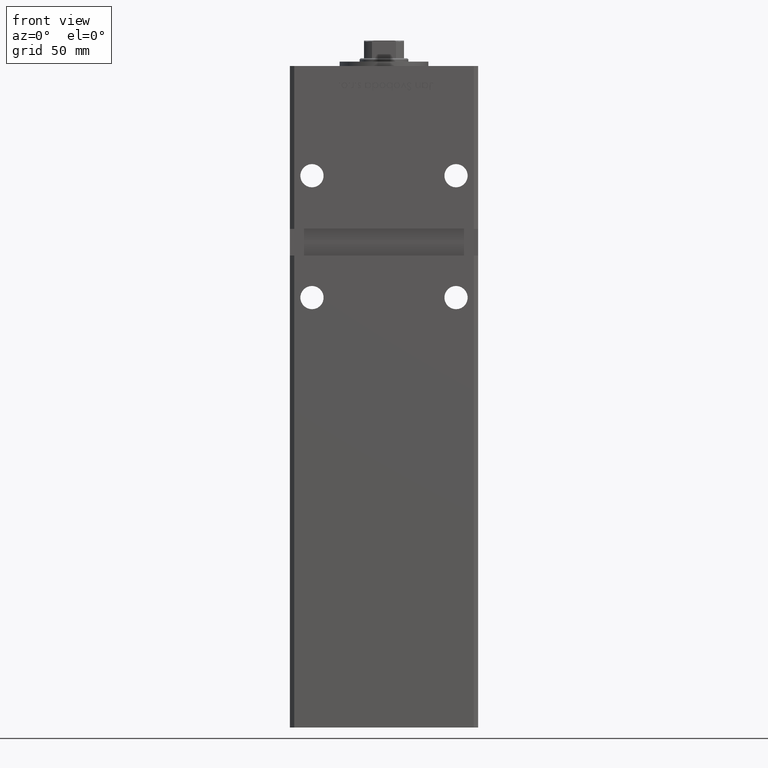
[diagram: clean part render]
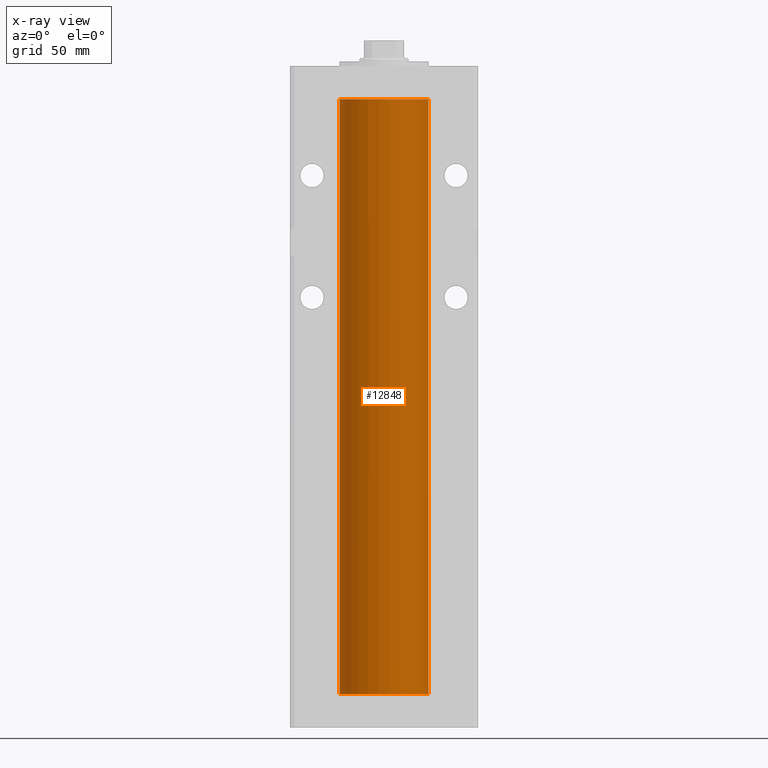
[diagram: x-ray — body ghosted, one internal face saturated and labeled with its STEP entity id]
A machine part, front view, then the same camera in x-ray: the body is ghosted and one INTERNAL B-rep face — a face not visible from any outside direction — is saturated and labeled: STEP entity #12848.
In plain terms, the highlighted cylindrical surface (partial cylindrical patch) has radius 20 mm, axis along (-0, -0, -1).
Its self-contained STEP definition (entity closure, byte-faithful):
#101 = ORIENTED_EDGE ( 'NONE', *, *, #42262, .F. ) ;
#169 = VECTOR ( 'NONE', #23671, 1000.000000000000000 ) ;
#838 = CARTESIAN_POINT ( 'NONE',  ( 20.00000000000000000, 2.449293598294706513E-15, 268.5000000000000000 ) ) ;
#3016 = LINE ( 'NONE', #51105, #50316 ) ;
#5364 = AXIS2_PLACEMENT_3D ( 'NONE', #5679, #9708, #34980 ) ;
#5679 = CARTESIAN_POINT ( 'NONE',  ( 0.000000000000000000, 0.000000000000000000, 268.5000000000000000 ) ) ;
#6170 = DIRECTION ( 'NONE',  ( -0.000000000000000000, 0.000000000000000000, 1.000000000000000000 ) ) ;
#6973 = CARTESIAN_POINT ( 'NONE',  ( 0.000000000000000000, 0.000000000000000000, 0.000000000000000000 ) ) ;
#7253 = CARTESIAN_POINT ( 'NONE',  ( 20.00000000000000000, 2.449293598294706513E-15, 268.5000000000000000 ) ) ;
#9708 = DIRECTION ( 'NONE',  ( -0.000000000000000000, 0.000000000000000000, 1.000000000000000000 ) ) ;
#12848 = ADVANCED_FACE ( 'NONE', ( #29734 ), #46110, .F. ) ;
#13248 = EDGE_CURVE ( 'NONE', #23552, #48323, #44336, .T. ) ;
#13307 = DIRECTION ( 'NONE',  ( -1.000000000000000000, 0.000000000000000000, 0.000000000000000000 ) ) ;
#15749 = ORIENTED_EDGE ( 'NONE', *, *, #13248, .T. ) ;
#15821 = AXIS2_PLACEMENT_3D ( 'NONE', #6973, #6170, #52129 ) ;
#16422 = EDGE_CURVE ( 'NONE', #50417, #23552, #31184, .T. ) ;
#20817 = ORIENTED_EDGE ( 'NONE', *, *, #29228, .F. ) ;
#21921 = DIRECTION ( 'NONE',  ( -0.000000000000000000, -0.000000000000000000, -1.000000000000000000 ) ) ;
#23552 = VERTEX_POINT ( 'NONE', #838 ) ;
#23671 = DIRECTION ( 'NONE',  ( -0.000000000000000000, -0.000000000000000000, -1.000000000000000000 ) ) ;
#26661 = DIRECTION ( 'NONE',  ( -0.000000000000000000, -0.000000000000000000, -1.000000000000000000 ) ) ;
#26794 = AXIS2_PLACEMENT_3D ( 'NONE', #45576, #21921, #13307 ) ;
#27747 = ORIENTED_EDGE ( 'NONE', *, *, #16422, .T. ) ;
#29228 = EDGE_CURVE ( 'NONE', #30045, #48323, #49280, .T. ) ;
#29734 = FACE_OUTER_BOUND ( 'NONE', #49647, .T. ) ;
#30045 = VERTEX_POINT ( 'NONE', #32252 ) ;
#31184 = CIRCLE ( 'NONE', #5364, 20.00000000000000000 ) ;
#32252 = CARTESIAN_POINT ( 'NONE',  ( -20.00000000000000000, 0.000000000000000000, 0.000000000000000000 ) ) ;
#34980 = DIRECTION ( 'NONE',  ( 1.000000000000000000, 0.000000000000000000, 0.000000000000000000 ) ) ;
#40695 = CARTESIAN_POINT ( 'NONE',  ( 20.00000000000000000, 2.449293598294706513E-15, 0.000000000000000000 ) ) ;
#42262 = EDGE_CURVE ( 'NONE', #50417, #30045, #3016, .T. ) ;
#44336 = LINE ( 'NONE', #7253, #169 ) ;
#45576 = CARTESIAN_POINT ( 'NONE',  ( 0.000000000000000000, 0.000000000000000000, 268.5000000000000000 ) ) ;
#46110 = CYLINDRICAL_SURFACE ( 'NONE', #26794, 20.00000000000000000 ) ;
#48323 = VERTEX_POINT ( 'NONE', #40695 ) ;
#48849 = CARTESIAN_POINT ( 'NONE',  ( -20.00000000000000000, 0.000000000000000000, 268.5000000000000000 ) ) ;
#49280 = CIRCLE ( 'NONE', #15821, 20.00000000000000000 ) ;
#49647 = EDGE_LOOP ( 'NONE', ( #27747, #15749, #20817, #101 ) ) ;
#50316 = VECTOR ( 'NONE', #26661, 1000.000000000000000 ) ;
#50417 = VERTEX_POINT ( 'NONE', #48849 ) ;
#51105 = CARTESIAN_POINT ( 'NONE',  ( -20.00000000000000000, 0.000000000000000000, 268.5000000000000000 ) ) ;
#52129 = DIRECTION ( 'NONE',  ( 1.000000000000000000, 0.000000000000000000, 0.000000000000000000 ) ) ;